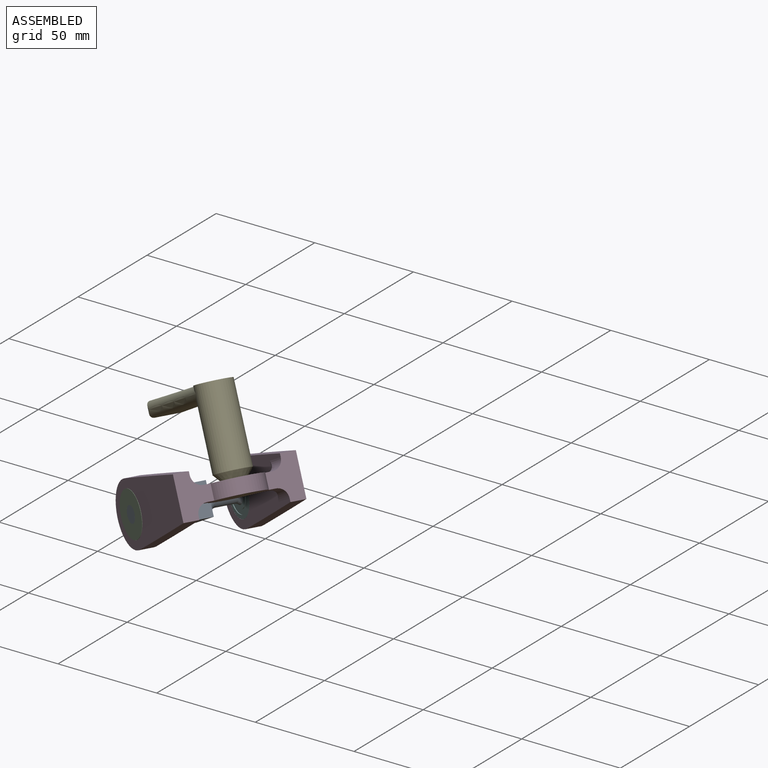
[diagram: assembled view]
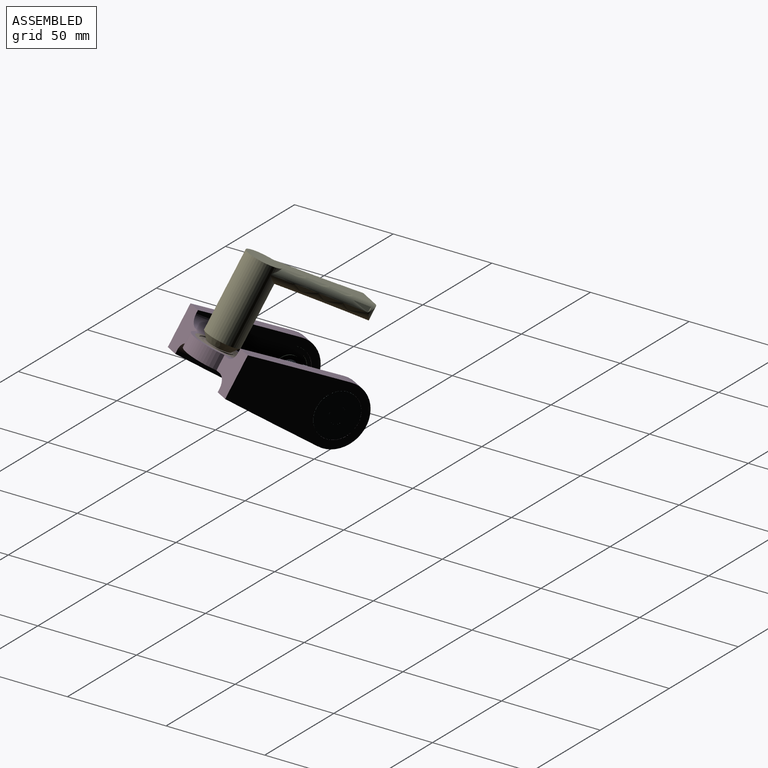
[diagram: assembled view, second angle]
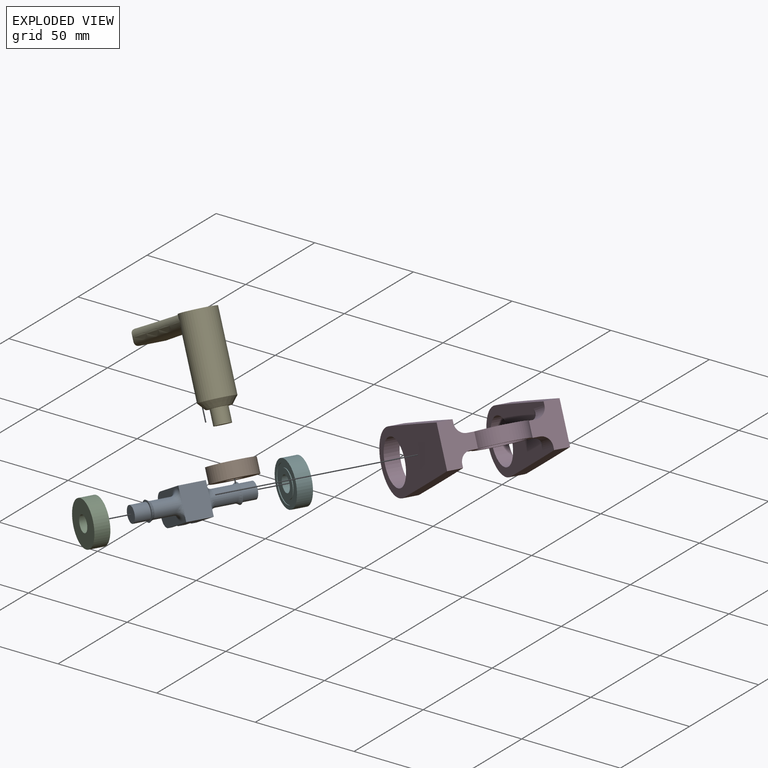
[diagram: exploded view]
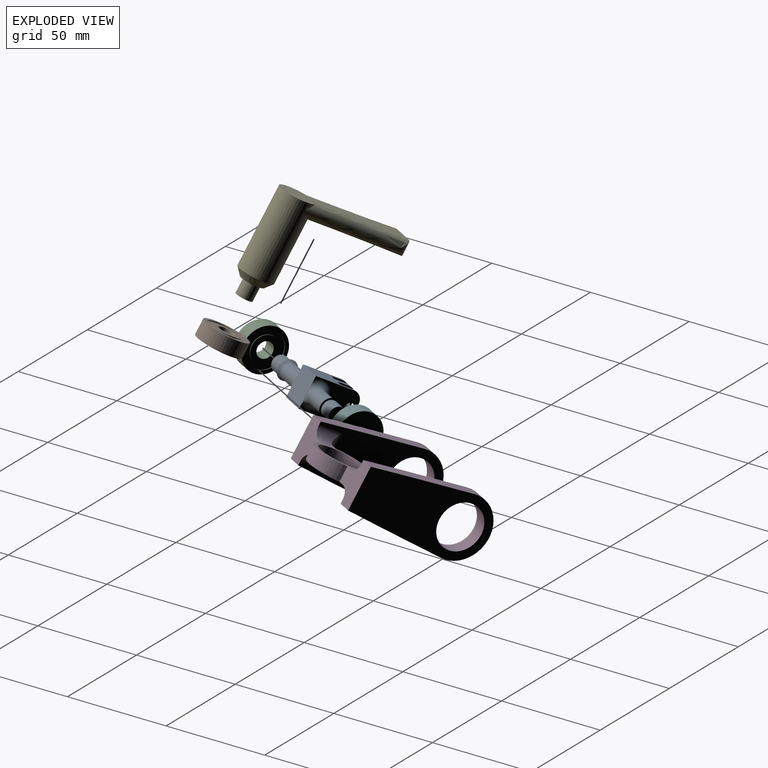
[diagram: exploded view, second angle]
ASSEMBLY  parts=6 mates=5
PART A: 39 faces, bbox 27.1x56.5x20 mm
  f0: plane 20.32x12.62mm, normal (0,0,-1), area 217.8mm2, adj f1,f3,f5,f6,f8,f9,f10,f12
  f1: plane 15.62x11.41mm, normal (0,1,0), area 146.9mm2, adj f0,f2,f4,f9,f17,f18,f21
  f2: plane 20.32x12.62mm, normal (0,0,1), area 217.8mm2, adj f1,f3,f5,f6,f8,f9,f10,f12
  f3: plane 15.62x11.41mm, normal (0,-1,0), area 146.9mm2, adj f0,f2,f4,f5,f17,f18,f21
  f4: plane 5.46x3.02mm, normal (-1,0,0), area 16.5mm2, adj f1,f3,f17,f18
  f5: plane 15.62x3.05mm, normal (-1,0,0), area 47.6mm2, adj f0,f2,f3,f6
  f6: plane 15.62x11.41mm, normal (0,1,0), area 146.9mm2, adj f0,f2,f5,f7,f15,f16,f20
  f7: plane 5.46x1.75mm, normal (-1,0,0), area 9.6mm2, adj f6,f8,f15,f16
  f8: plane 25.4x15.62mm, normal (0,-1,0), area 233.1mm2, adj f0,f2,f7,f15,f16,f20,f22,f26
  f9: plane 15.62x3.05mm, normal (-1,0,0), area 47.6mm2, adj f0,f1,f2,f10
  f10: plane 15.62x11.41mm, normal (0,-1,0), area 146.9mm2, adj f0,f2,f9,f11,f13,f14,f19
  f11: plane 5.46x1.75mm, normal (-1,0,0), area 9.6mm2, adj f10,f12,f13,f14
  f12: plane 25.4x15.62mm, normal (0,1,0), area 233.1mm2, adj f0,f2,f11,f13,f14,f19,f22,f29
  f13: cylinder r=5.08mm len=5.08mm, axis (0,1,0), area 14mm2, adj f0,f10,f11,f12
  f14: cylinder r=5.08mm len=5.08mm, axis (0,-1,0), area 14mm2, adj f2,f10,f11,f12
  f15: cylinder r=5.08mm len=5.08mm, axis (0,1,0), area 14mm2, adj f2,f6,f7,f8
  f16: cylinder r=5.08mm len=5.08mm, axis (0,-1,0), area 14mm2, adj f0,f6,f7,f8
  f17: cylinder r=5.08mm len=5.08mm, axis (0,-1,0), area 24.1mm2, adj f1,f2,f3,f4
  f18: cylinder r=5.08mm len=5.08mm, axis (0,1,0), area 24.1mm2, adj f0,f1,f3,f4
  f19: cylinder r=2.54mm len=5.08mm, axis (0,-1,0), area 28mm2, adj f10,f12
  f20: cylinder r=2.54mm len=5.08mm, axis (0,-1,0), area 28mm2, adj f6,f8
  f21: cylinder r=2.54mm len=5.08mm, axis (0,-1,0), area 48.2mm2, adj f1,f3
  f22: plane 15.62x12.62mm, normal (1,0,0), area 197.1mm2, adj f0,f2,f8,f12,f25,f27,f28,f30
  f23: cylinder r=4.01mm len=13mm, axis (0,-1,0), area 259.7mm2, adj f28,f29,f30,f31
  f24: cylinder r=4.01mm len=13mm, axis (0,1,0), area 259.7mm2, adj f25,f26,f27,f35
  f25: bspline ~6.19x3.35mm, area 9.8mm2, adj f22,f24,f26
  f26: torus R=7.08mm, axis (0,-1,0), area 107.3mm2, adj f8,f24,f25,f27
  f27: bspline ~6.19x3.35mm, area 9.8mm2, adj f22,f24,f26
  f28: bspline ~6.19x3.35mm, area 9.8mm2, adj f22,f23,f29
  f29: torus R=7.08mm, axis (0,1,0), area 107.3mm2, adj f12,f23,f28,f30
  f30: bspline ~6.19x3.35mm, area 9.8mm2, adj f22,f23,f29
  f31: cone r=4.01mm half-angle=30deg, axis (0,1,0), area 50.1mm2, adj f23,f32
  f32: plane 9.82x9.82mm, normal (0,1,0), area 25.4mm2, adj f31,f33
  f33: cylinder r=4mm len=8mm, axis (0,-1,0), area 185.2mm2, adj f32,f34
  f34: plane 8x8mm, normal (0,1,0), area 50.3mm2, adj f33
  f35: cone r=4.01mm half-angle=30deg, axis (0,-1,0), area 50.1mm2, adj f24,f36
  f36: plane 9.82x9.82mm, normal (0,-1,0), area 25.4mm2, adj f35,f37
  f37: cylinder r=4mm len=8mm, axis (0,1,0), area 185.2mm2, adj f36,f38
  f38: plane 8x8mm, normal (0,-1,0), area 50.3mm2, adj f37
PART B: 8 faces, bbox 22x22x7.3 mm
  f0: plane 13.71x13.71mm, normal (0,0,1), area 97.4mm2, adj f1,f5
  f1: cylinder r=4mm len=8mm, axis (0,0,-1), area 183.9mm2, adj f0,f4
  f2: cylinder r=10.99mm len=21.97mm, axis (0,0,-1), area 504.9mm2, adj f3,f4
  f3: plane 21.97x21.97mm, normal (0,0,1), area 119.8mm2, adj f2,f6
  f4: plane 21.97x21.97mm, normal (0,0,-1), area 328.9mm2, adj f1,f2
  f5: cylinder r=6.86mm len=13.71mm, axis (0,0,1), area 16.4mm2, adj f0,f7
  f6: cylinder r=9.09mm len=18.17mm, axis (0,0,1), area 21.7mm2, adj f3,f7
  f7: plane 18.17x18.17mm, normal (0,0,1), area 111.6mm2, adj f5,f6
PART C: same geometry as B
PART D: 27 faces, bbox 56.4x30.5x78 mm
  f0: cylinder r=13mm len=24.96mm, axis (0,-1,0), area 244.6mm2, adj f8,f9,f10,f20
  f1: cylinder r=15.24mm len=30.48mm, axis (-1,0,0), area 371.2mm2, adj f2,f4,f6,f7
  f2: cylinder r=3967.83mm len=51.91mm, axis (-1,0,0), area 381.3mm2, adj f1,f3,f6,f7
  f3: plane 20.76x15.69mm, normal (0,0,1), area 224.2mm2, adj f2,f4,f6,f7,f8,f9,f11,f24
  f4: cylinder r=3967.83mm len=51.91mm, axis (-1,0,0), area 381.3mm2, adj f1,f3,f6,f7
  f5: cylinder r=11.02mm len=22.05mm, axis (-1,0,0), area 506.7mm2, adj f6,f7
  f6: plane 68.58x30.48mm, normal (1,0,0), area 1359.1mm2, adj f1,f2,f3,f4,f5
  f7: plane 68.58x30.48mm, normal (-1,0,0), area 1142.5mm2, adj f1,f2,f3,f4,f5,f24,f25,f26
  f8: plane 31.56x26.17mm, normal (0,-1,0), area 194.3mm2, adj f0,f3,f10,f11,f12,f15,f20,f21
  f9: plane 31.56x26.17mm, normal (0,1,0), area 194.2mm2, adj f0,f3,f10,f11,f12,f15,f20,f22
  f10: plane 7.32x3.3mm, normal (0,0,-1), area 24.1mm2, adj f0,f8,f9,f25
  f11: cylinder r=13mm len=24.96mm, axis (0,-1,0), area 244.6mm2, adj f3,f8,f9,f15
  f12: cylinder r=11mm len=22mm, axis (0,-1,0), area 505.5mm2, adj f8,f9
  f13: cylinder r=15.24mm len=30.48mm, axis (1,0,0), area 371.2mm2, adj f14,f16,f18,f19
  f14: cylinder r=3967.83mm len=51.91mm, axis (1,0,0), area 381.3mm2, adj f13,f15,f18,f19
  f15: plane 20.77x15.69mm, normal (0,0,1), area 224.2mm2, adj f8,f9,f11,f14,f16,f18,f19,f21
  f16: cylinder r=3967.83mm len=51.91mm, axis (1,0,0), area 381.3mm2, adj f13,f15,f18,f19
  f17: cylinder r=11.02mm len=22.05mm, axis (1,0,0), area 506.7mm2, adj f18,f19
  f18: plane 68.58x30.48mm, normal (-1,0,0), area 1359.1mm2, adj f13,f14,f15,f16,f17
  f19: plane 68.58x30.48mm, normal (1,0,0), area 1142.5mm2, adj f13,f14,f15,f16,f17,f21,f22,f23
  f20: plane 7.32x3.3mm, normal (0,0,-1), area 24.1mm2, adj f0,f8,f9,f23
  f21: cylinder r=5.08mm len=12.4mm, axis (0,0,-1), area 78.6mm2, adj f8,f15,f19,f23
  f22: cylinder r=5.08mm len=12.4mm, axis (0,0,1), area 78.6mm2, adj f9,f15,f19,f23
  f23: cylinder r=5.08mm len=17.48mm, axis (0,1,0), area 98.9mm2, adj f19,f20,f21,f22
  f24: cylinder r=5.08mm len=12.4mm, axis (0,0,-1), area 78.6mm2, adj f3,f7,f8,f25
  f25: cylinder r=5.08mm len=17.48mm, axis (0,1,0), area 98.9mm2, adj f7,f10,f24,f26
  f26: cylinder r=5.08mm len=12.4mm, axis (0,0,1), area 78.6mm2, adj f3,f7,f9,f25
PART E: 17 faces, bbox 48.8x19.3x64.7 mm
  f0: cylinder r=4.01mm len=8.03mm, axis (-1,0,0), area 184.5mm2, adj f1,f3
  f1: plane 8.03x8.03mm, normal (-1,0,0), area 50.6mm2, adj f0
  f2: cone r=5.71mm half-angle=40deg, axis (1,0,0), area 201.2mm2, adj f3,f4
  f3: plane 11.43x11.43mm, normal (-1,0,0), area 52mm2, adj f0,f2
  f4: cylinder r=8.59mm len=38.1mm, axis (-1,0,0), area 1901.1mm2, adj f2,f5,f6,f7,f8,f10,f11,f12
  f5: cylinder r=8.59mm len=6.27mm, axis (-1,0,0), area 9.7mm2, adj f4,f6,f15
  f6: plane 64.47x17.18mm, normal (1,0,0), area 700.4mm2, adj f4,f5,f9,f12,f13,f15,f16
  f7: cylinder r=457.18mm len=50.99mm, axis (1,0,0), area 0.4mm2, adj f4,f11,f12,f13
  f8: cylinder r=457.18mm len=50.99mm, axis (1,0,0), area 0.4mm2, adj f4,f14,f15,f16
  f9: plane 11.45x7.37mm, normal (0,0,-1), area 84.3mm2, adj f6,f10,f13,f16
  f10: plane 48.66x12.01mm, normal (-1,0,0), area 468.4mm2, adj f4,f9,f11,f13,f14,f16
  f11: torus R=460.86mm, axis (1,0,0), area 289.6mm2, adj f4,f7,f10,f13
  f12: torus R=460.86mm, axis (1,0,0), area 289.6mm2, adj f4,f6,f7,f13
  f13: cylinder r=3.68mm len=7.37mm, axis (1,0,0), area 29.1mm2, adj f6,f7,f9,f10,f11,f12
  f14: torus R=460.86mm, axis (1,0,0), area 289.6mm2, adj f4,f8,f10,f16
  f15: torus R=460.86mm, axis (1,0,0), area 289.6mm2, adj f5,f6,f8,f16
  f16: cylinder r=3.68mm len=7.37mm, axis (1,0,0), area 29.1mm2, adj f6,f8,f9,f10,f14,f15
PART F: same geometry as B
PLACE A rot(axis=(-0.19,-0.69,-0.69),42.2deg) t=(110.53,40.05,0.39)mm
PLACE B rot(axis=(-0.19,-0.69,-0.69),42.2deg) t=(165.45,8.41,32.76)mm
PLACE C rot(axis=(-0.89,0,-0.45),104.5deg) t=(112.46,6.34,11.09)mm
PLACE D rot(axis=(0.65,0.38,0.65),82.8deg) t=(137.03,48.9,11.09)mm
PLACE E rot(axis=(0.5,-0.13,0.86),154.1deg) t=(126.51,30.89,6.8)mm
PLACE F rot(axis=(0.87,-0.5,0),90deg) t=(140.69,55.23,11.09)mm
MATE revolute D.f5 <-> F.f2  axis (-0.5,-0.87,0) through (137.03,48.9,11.09)mm
MATE fastened F.f1 <-> A.f33  axis (0.5,0.87,0) through (140.69,55.23,11.09)mm
MATE revolute B.f1 <-> D.f0  axis (0.43,-0.25,-0.87) through (165.45,8.41,32.76)mm
MATE fastened C.f2 <-> A.f37  axis (-0.5,-0.87,0) through (112.46,6.34,11.09)mm
MATE fastened E.f0 <-> B.f1  axis (0.43,-0.25,-0.87) through (162.28,10.24,39.1)mm
